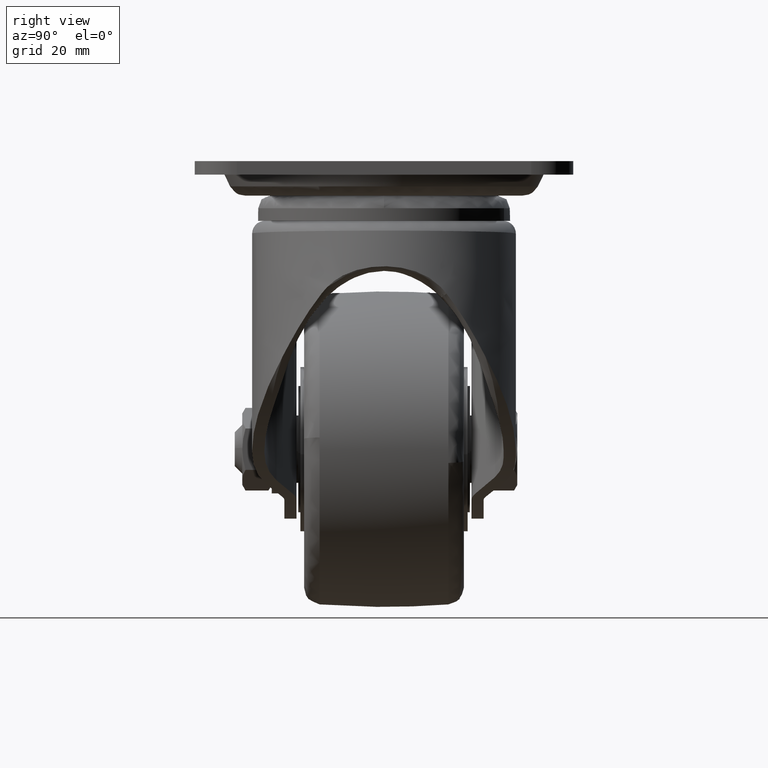
[diagram: clean part render]
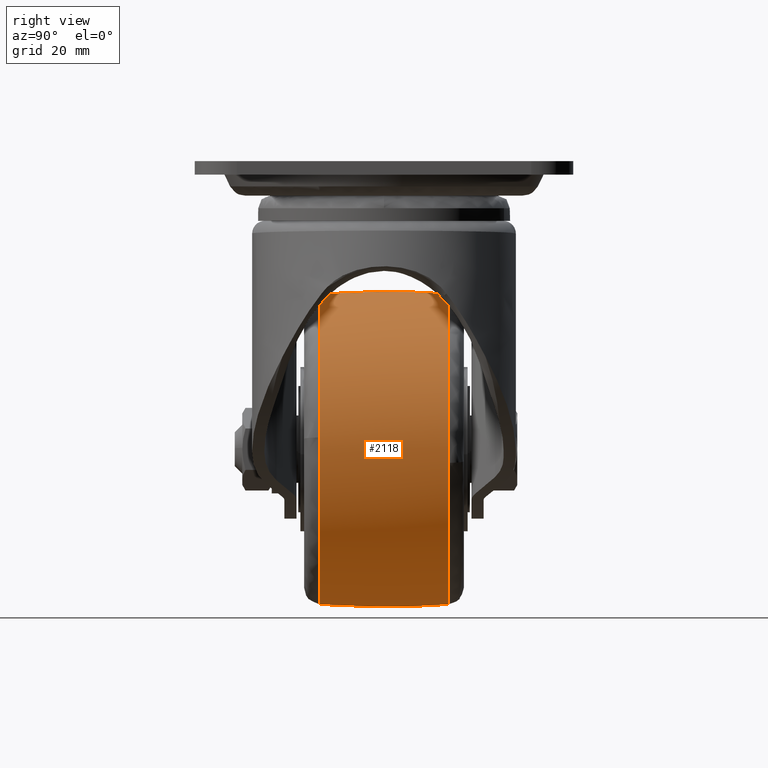
[diagram: same view with one face highlighted and labeled with its STEP entity id]
A machine part, right view. The second image highlights one B-rep face of the part: STEP entity #2118.
In plain terms, the highlighted face is a freeform B-spline surface patch.
Its self-contained STEP definition (entity closure, byte-faithful):
#1910=CARTESIAN_POINT('',(-22.0,-15.306123264225420,-105.413446363630000));
#1911=VERTEX_POINT('',#1910);
#1925=CARTESIAN_POINT('',(14.808571611944000,-15.306123262400311,-65.719428002000541));
#1926=VERTEX_POINT('',#1925);
#1927=CARTESIAN_POINT('',(-22.0,-15.306123264225420,-105.413446363630000));
#1928=CARTESIAN_POINT('',(14.913446411886328,-15.306123263381249,-105.413446364711670));
#1929=CARTESIAN_POINT('',(14.913446396445320,-15.306123262466789,-68.500000002247745));
#1930=CARTESIAN_POINT('',(14.913446395862923,-15.306123262432301,-67.107736221987309));
#1931=CARTESIAN_POINT('',(14.808571611944002,-15.306123262400314,-65.719428002000541));
#1939=(BOUNDED_CURVE()B_SPLINE_CURVE(2,(#1927,#1928,#1929,#1930,#1931),.UNSPECIFIED.,.F.,.U.)B_SPLINE_CURVE_WITH_KNOTS((3,2,3),(0.0,0.250000000000000,0.263129840759721),.UNSPECIFIED.)CURVE()GEOMETRIC_REPRESENTATION_ITEM()RATIONAL_B_SPLINE_CURVE((1.0,0.707106781186548,1.0,0.984617434709509,0.970850634480939))REPRESENTATION_ITEM(''));
#1940=EDGE_CURVE('',#1911,#1926,#1939,.T.);
#1991=CARTESIAN_POINT('',(-22.0,-15.306123264217179,-31.586553636369320));
#1992=VERTEX_POINT('',#1991);
#1993=CARTESIAN_POINT('',(14.808571611944002,-15.306123262400314,-65.719428002000541));
#1994=CARTESIAN_POINT('',(12.230125607035051,-15.306123263306839,-31.586553637535751));
#1995=CARTESIAN_POINT('',(-22.0,-15.306123264217179,-31.586553636369320));
#2003=(BOUNDED_CURVE()B_SPLINE_CURVE(2,(#1993,#1994,#1995),.UNSPECIFIED.,.F.,.U.)B_SPLINE_CURVE_WITH_KNOTS((3,3),(0.263129840759721,0.500000000000000),.UNSPECIFIED.)CURVE()GEOMETRIC_REPRESENTATION_ITEM()RATIONAL_B_SPLINE_CURVE((0.970850634480939,0.722489346477039,1.0))REPRESENTATION_ITEM(''));
#2004=EDGE_CURVE('',#1926,#1992,#2003,.T.);
#2025=CARTESIAN_POINT('',(-23.028545633244740,-16.830030157664975,-105.290617152168220));
#2026=CARTESIAN_POINT('',(-23.068280295610233,0.000003840997118,-106.711908248556010));
#2027=CARTESIAN_POINT('',(-23.028545615236464,16.830037785261080,-105.290616508019970));
#2028=CARTESIAN_POINT('',(-22.517267812753410,-16.830030157664975,-105.290617152168210));
#2029=CARTESIAN_POINT('',(-22.537250846298992,0.000003840997118,-106.711908248556010));
#2030=CARTESIAN_POINT('',(-22.517267803696821,16.830037785261080,-105.290616508019950));
#2031=CARTESIAN_POINT('',(14.790617152168210,-16.830030157664972,-105.290617152168210));
#2032=CARTESIAN_POINT('',(16.211908248556028,0.000003840997119,-106.711908248556010));
#2033=CARTESIAN_POINT('',(14.790616508019966,16.830037785261077,-105.290616508019970));
#2034=CARTESIAN_POINT('',(14.790617152168213,-16.830030157664979,-68.500000000000000));
#2035=CARTESIAN_POINT('',(16.211908248556025,0.000003840997118,-68.499999999999986));
#2036=CARTESIAN_POINT('',(14.790616508019969,16.830037785261073,-68.500000000000000));
#2037=CARTESIAN_POINT('',(14.790617152168217,-16.830030157664972,-31.709382847831787));
#2038=CARTESIAN_POINT('',(16.211908248556028,0.000003840997119,-30.288091751443968));
#2039=CARTESIAN_POINT('',(14.790616508019966,16.830037785261077,-31.709383491980038));
#2040=CARTESIAN_POINT('',(-22.517267812753399,-16.830030157664979,-31.709382847831794));
#2041=CARTESIAN_POINT('',(-22.537250846298981,0.000003840997118,-30.288091751443979));
#2042=CARTESIAN_POINT('',(-22.517267803696825,16.830037785261073,-31.709383491980045));
#2043=CARTESIAN_POINT('',(-23.028545633244740,-16.830030157664975,-31.709382847831790));
#2044=CARTESIAN_POINT('',(-23.068280295610233,0.000003840997118,-30.288091751443975));
#2045=CARTESIAN_POINT('',(-23.028545615236457,16.830037785261080,-31.709383491980038));
#2053=(BOUNDED_SURFACE()B_SPLINE_SURFACE(2,2,((#2025,#2028,#2031,#2034,#2037,#2040,#2043),(#2026,#2029,#2032,#2035,#2038,#2041,#2044),(#2027,#2030,#2033,#2036,#2039,#2042,#2045)),.UNSPECIFIED.,.F.,.F.,.U.)B_SPLINE_SURFACE_WITH_KNOTS((3,3),(3,1,2,1,3),(0.0,33.719868711314149),(0.0,1.242640687119285,63.374675043083478,125.506709399047690,126.749350086167000),.UNSPECIFIED.)GEOMETRIC_REPRESENTATION_ITEM()RATIONAL_B_SPLINE_SURFACE(((0.918496292972066,0.913178171921432,0.641953998339106,0.907860050870799,0.641953998339106,0.913178171921432,0.918496292972066),(0.915238464651036,0.909939206523972,0.639677042043702,0.904639948396907,0.639677042043702,0.909939206523972,0.915238464651036),(0.918496294453814,0.913178173394600,0.641953999374726,0.907860052335387,0.641953999374726,0.913178173394600,0.918496294453814)))REPRESENTATION_ITEM('')SURFACE());
#2054=CARTESIAN_POINT('',(-22.0,15.306126688645850,-105.413446100786100));
#2055=VERTEX_POINT('',#2054);
#2056=CARTESIAN_POINT('',(-22.0,-15.306123264225402,-105.413446363629970));
#2057=CARTESIAN_POINT('',(-22.000000000000007,0.000001722297611,-106.588279054270900));
#2058=CARTESIAN_POINT('',(-22.0,15.306126688645850,-105.413446100786090));
#2066=(BOUNDED_CURVE()B_SPLINE_CURVE(2,(#2056,#2057,#2058),.UNSPECIFIED.,.F.,.U.)B_SPLINE_CURVE_WITH_KNOTS((3,3),(0.440426803846777,0.559573209520666),.UNSPECIFIED.)CURVE()GEOMETRIC_REPRESENTATION_ITEM()RATIONAL_B_SPLINE_CURVE((0.907580862137466,0.904919137563906,0.907580862734722))REPRESENTATION_ITEM(''));
#2067=EDGE_CURVE('',#1911,#2055,#2066,.T.);
#2068=ORIENTED_EDGE('',*,*,#2067,.T.);
#2069=CARTESIAN_POINT('',(14.770724452030590,15.306126676629290,-71.742890423072211));
#2070=VERTEX_POINT('',#2069);
#2071=CARTESIAN_POINT('',(-22.0,15.306126688645850,-105.413446100786100));
#2072=CARTESIAN_POINT('',(11.801244706569882,15.306126682647827,-105.413446093734580));
#2073=CARTESIAN_POINT('',(14.770724452030590,15.306126676629290,-71.742890423072211));
#2081=(BOUNDED_CURVE()B_SPLINE_CURVE(2,(#2071,#2072,#2073),.UNSPECIFIED.,.F.,.U.)B_SPLINE_CURVE_WITH_KNOTS((3,3),(0.0,0.234718454724046),.UNSPECIFIED.)CURVE()GEOMETRIC_REPRESENTATION_ITEM()RATIONAL_B_SPLINE_CURVE((1.0,0.725010225123819,0.966381850438441))REPRESENTATION_ITEM(''));
#2082=EDGE_CURVE('',#2055,#2070,#2081,.T.);
#2083=ORIENTED_EDGE('',*,*,#2082,.T.);
#2084=CARTESIAN_POINT('',(-22.0,15.306126688600891,-31.586553899210440));
#2085=VERTEX_POINT('',#2084);
#2086=CARTESIAN_POINT('',(14.770724452030588,15.306126676629288,-71.742890423072211));
#2087=CARTESIAN_POINT('',(14.913446269514763,15.306126676870031,-70.124585846781827));
#2088=CARTESIAN_POINT('',(14.913446273033690,15.306126677133021,-68.499999986489769));
#2089=CARTESIAN_POINT('',(14.913446352989878,15.306126683108557,-31.586553892753443));
#2090=CARTESIAN_POINT('',(-22.0,15.306126688600891,-31.586553899210440));
#2098=(BOUNDED_CURVE()B_SPLINE_CURVE(2,(#2086,#2087,#2088,#2089,#2090),.UNSPECIFIED.,.F.,.U.)B_SPLINE_CURVE_WITH_KNOTS((3,2,3),(0.234718454724046,0.250000000000000,0.500000000000000),.UNSPECIFIED.)CURVE()GEOMETRIC_REPRESENTATION_ITEM()RATIONAL_B_SPLINE_CURVE((0.966381850438441,0.982096556062729,1.0,0.707106781186548,1.0))REPRESENTATION_ITEM(''));
#2099=EDGE_CURVE('',#2070,#2085,#2098,.T.);
#2100=ORIENTED_EDGE('',*,*,#2099,.T.);
#2101=CARTESIAN_POINT('',(-22.0,-15.306123264217183,-31.586553636369388));
#2102=CARTESIAN_POINT('',(-22.000000000000004,0.000001722279125,-30.411720945731155));
#2103=CARTESIAN_POINT('',(-22.0,15.306126688600871,-31.586553899210458));
#2111=(BOUNDED_CURVE()B_SPLINE_CURVE(2,(#2101,#2102,#2103),.UNSPECIFIED.,.F.,.U.)B_SPLINE_CURVE_WITH_KNOTS((3,3),(0.440426803846809,0.559573209520490),.UNSPECIFIED.)CURVE()GEOMETRIC_REPRESENTATION_ITEM()RATIONAL_B_SPLINE_CURVE((0.907580862137465,0.904919137563910,0.907580862734715))REPRESENTATION_ITEM(''));
#2112=EDGE_CURVE('',#1992,#2085,#2111,.T.);
#2113=ORIENTED_EDGE('',*,*,#2112,.F.);
#2114=ORIENTED_EDGE('',*,*,#2004,.F.);
#2115=ORIENTED_EDGE('',*,*,#1940,.F.);
#2116=EDGE_LOOP('',(#2068,#2083,#2100,#2113,#2114,#2115));
#2117=FACE_OUTER_BOUND('',#2116,.T.);
#2118=ADVANCED_FACE('',(#2117),#2053,.T.);